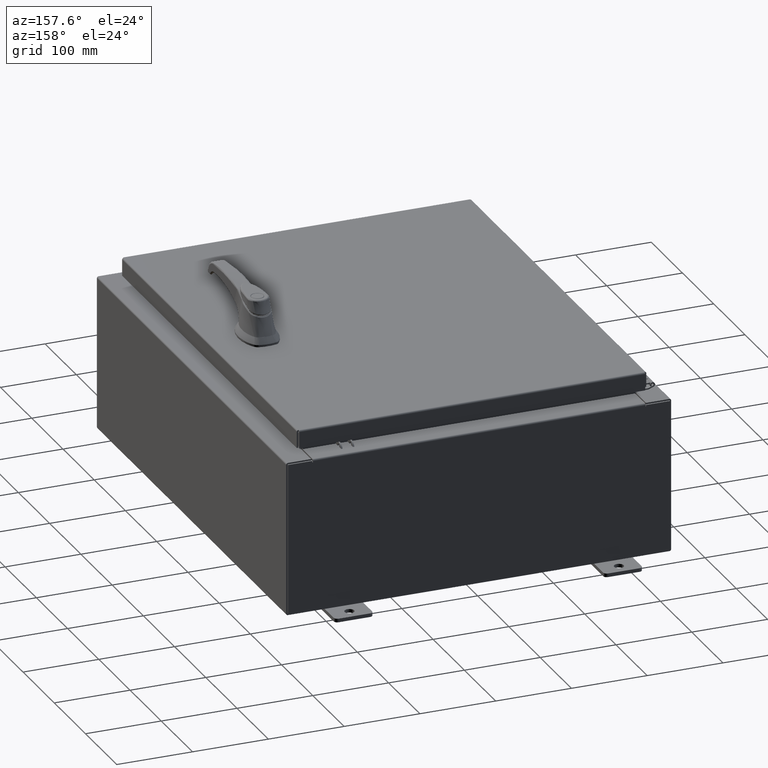
[diagram: clean part render]
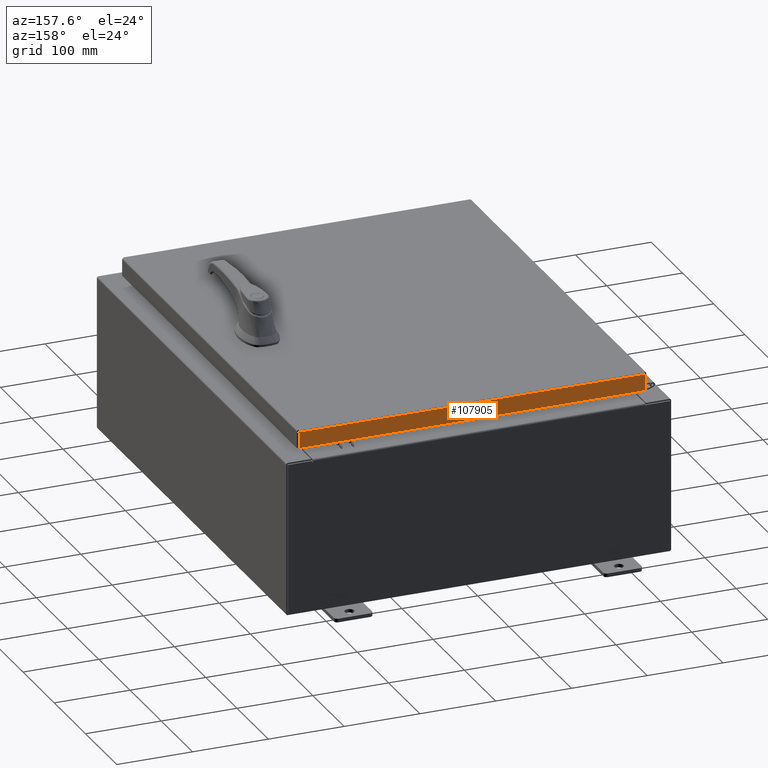
[diagram: same view with one face highlighted and labeled with its STEP entity id]
A machine part, auxiliary view. The second image highlights one B-rep face of the part: STEP entity #107905.
In plain terms, the highlighted planar face has unit normal (0, -1, -0).
Its self-contained STEP definition (entity closure, byte-faithful):
#4063 = LINE ( 'NONE', #58469, #48005 ) ;
#5786 = CARTESIAN_POINT ( 'NONE',  ( -3.593181587209831700E-030, 11.09399999999999900, 2.835548029954460800E-014 ) ) ;
#6725 = EDGE_LOOP ( 'NONE', ( #39909, #94770, #52325, #85622 ) ) ;
#12639 = VECTOR ( 'NONE', #111543, 39.37007874015748100 ) ;
#14593 = DIRECTION ( 'NONE',  ( 0.0000000000000000000, 2.532419924601859400E-015, -1.000000000000000000 ) ) ;
#16213 = VERTEX_POINT ( 'NONE', #20751 ) ;
#20751 = CARTESIAN_POINT ( 'NONE',  ( 8.989157864376267100, 11.09399999999999900, -0.08770000000000008300 ) ) ;
#24764 = CARTESIAN_POINT ( 'NONE',  ( 8.989157864376267100, 11.09399999999999900, 2.835548029954460800E-014 ) ) ;
#31908 = PLANE ( 'NONE',  #39519 ) ;
#31916 = VECTOR ( 'NONE', #82286, 39.37007874015748100 ) ;
#33617 = DIRECTION ( 'NONE',  ( 0.0000000000000000000, 2.532419924601859400E-015, -1.000000000000000000 ) ) ;
#35407 = VERTEX_POINT ( 'NONE', #48036 ) ;
#36006 = LINE ( 'NONE', #102746, #12639 ) ;
#37684 = VERTEX_POINT ( 'NONE', #87456 ) ;
#39519 = AXIS2_PLACEMENT_3D ( 'NONE', #5786, #67204, #14593 ) ;
#39909 = ORIENTED_EDGE ( 'NONE', *, *, #48013, .F. ) ;
#43655 = EDGE_CURVE ( 'NONE', #56207, #37684, #93623, .T. ) ;
#45787 = LINE ( 'NONE', #24764, #89709 ) ;
#48005 = VECTOR ( 'NONE', #67335, 39.37007874015748100 ) ;
#48013 = EDGE_CURVE ( 'NONE', #16213, #35407, #4063, .T. ) ;
#48036 = CARTESIAN_POINT ( 'NONE',  ( -8.989157864376267100, 11.09399999999999900, -0.08770000000000008300 ) ) ;
#52325 = ORIENTED_EDGE ( 'NONE', *, *, #43655, .F. ) ;
#56207 = VERTEX_POINT ( 'NONE', #65138 ) ;
#58469 = CARTESIAN_POINT ( 'NONE',  ( -9.077999999999999400, 11.09399999999999900, -0.08770000000000008300 ) ) ;
#65138 = CARTESIAN_POINT ( 'NONE',  ( -8.989157864376267100, 11.09400000000000100, -0.9377000000000020900 ) ) ;
#67204 = DIRECTION ( 'NONE',  ( 3.238851259428368500E-031, -1.000000000000000000, -2.532419924601859400E-015 ) ) ;
#67335 = DIRECTION ( 'NONE',  ( -1.000000000000000000, -3.238851259428369400E-031, -8.109186372806501700E-046 ) ) ;
#67570 = FACE_OUTER_BOUND ( 'NONE', #6725, .T. ) ;
#73510 = CARTESIAN_POINT ( 'NONE',  ( -9.077999999999999400, 11.09400000000000100, -0.9377000000000020900 ) ) ;
#82286 = DIRECTION ( 'NONE',  ( 1.000000000000000000, -4.379057701015054300E-047, 1.278955053213606700E-016 ) ) ;
#85622 = ORIENTED_EDGE ( 'NONE', *, *, #92178, .F. ) ;
#87456 = CARTESIAN_POINT ( 'NONE',  ( 8.989157864376267100, 11.09400000000000100, -0.9376999999999997600 ) ) ;
#89709 = VECTOR ( 'NONE', #33617, 39.37007874015748100 ) ;
#92178 = EDGE_CURVE ( 'NONE', #35407, #56207, #36006, .T. ) ;
#93623 = LINE ( 'NONE', #73510, #31916 ) ;
#94770 = ORIENTED_EDGE ( 'NONE', *, *, #102079, .T. ) ;
#102079 = EDGE_CURVE ( 'NONE', #16213, #37684, #45787, .T. ) ;
#102746 = CARTESIAN_POINT ( 'NONE',  ( -8.989157864376267100, 11.09399999999999900, -0.07469999999999980800 ) ) ;
#107905 = ADVANCED_FACE ( 'NONE', ( #67570 ), #31908, .F. ) ;
#111543 = DIRECTION ( 'NONE',  ( -0.0000000000000000000, 2.532419924601859400E-015, -1.000000000000000000 ) ) ;